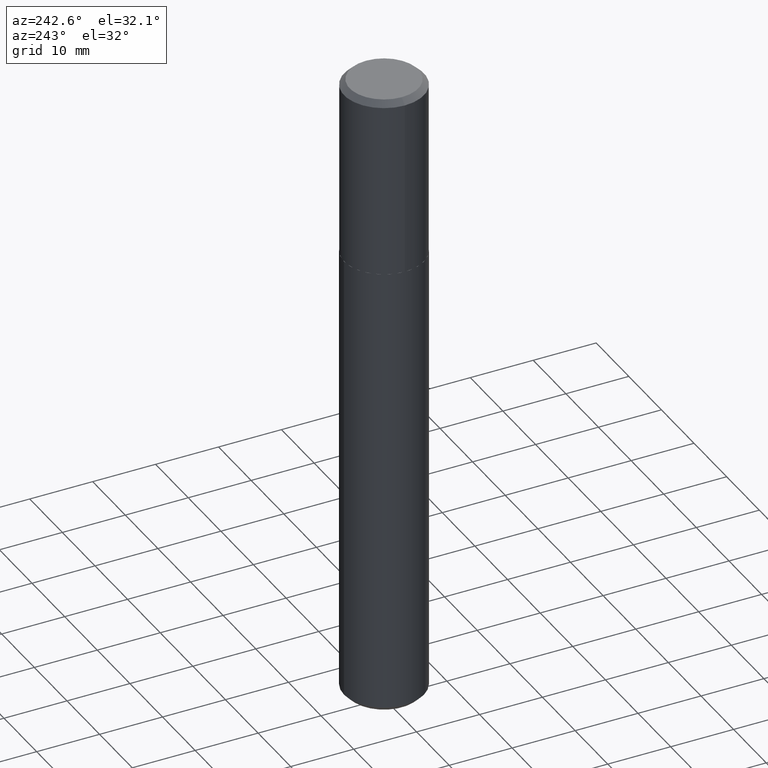
[diagram: clean part render]
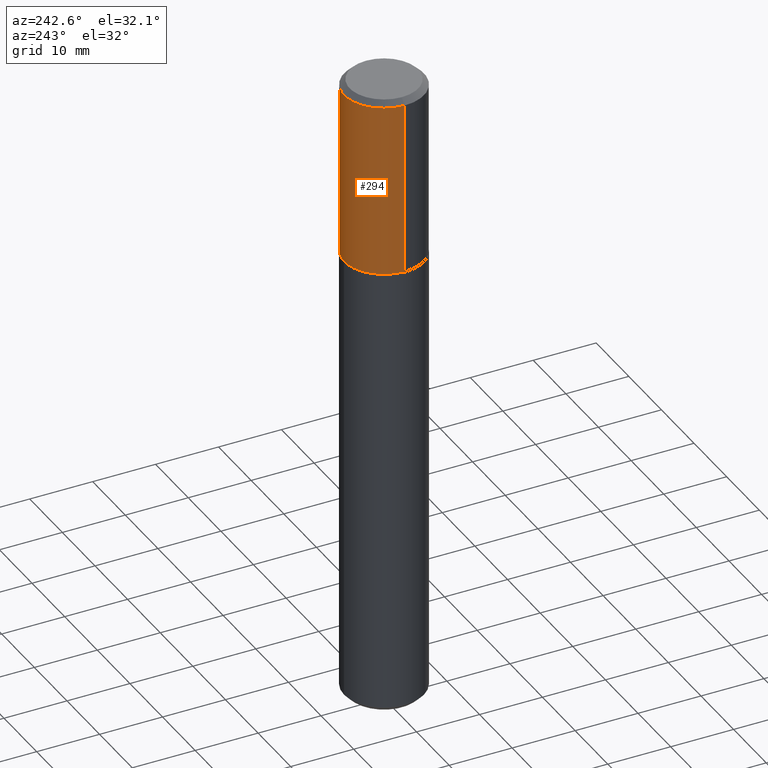
[diagram: same view with one face highlighted and labeled with its STEP entity id]
A machine part, auxiliary view. The second image highlights one B-rep face of the part: STEP entity #294.
In plain terms, the highlighted cylindrical surface (partial cylindrical patch) has radius 6.35 mm, axis along (-0, 0, 1).
Its self-contained STEP definition (entity closure, byte-faithful):
#1 = CARTESIAN_POINT ( 'NONE',  ( -0.2500000000000001110, -2.149813926128866467E-15, -1.124500000000000055 ) ) ;
#27 = ORIENTED_EDGE ( 'NONE', *, *, #96, .T. ) ;
#32 = CIRCLE ( 'NONE', #102, 0.2500000000000000000 ) ;
#34 = EDGE_CURVE ( 'NONE', #311, #95, #108, .T. ) ;
#42 = VECTOR ( 'NONE', #269, 39.37007874015748143 ) ;
#44 = CARTESIAN_POINT ( 'NONE',  ( -0.2500000000000000555, 1.776356839400250859E-15, -1.229733772563726866E-29 ) ) ;
#46 = DIRECTION ( 'NONE',  ( -2.445468806185136597E-29, 3.491481338843145583E-15, 1.000000000000000000 ) ) ;
#56 = FACE_OUTER_BOUND ( 'NONE', #62, .T. ) ;
#58 = CARTESIAN_POINT ( 'NONE',  ( 0.2500000000000000555, -1.745740669421567269E-15, 1.219044193948984228E-29 ) ) ;
#62 = EDGE_LOOP ( 'NONE', ( #27, #218, #414, #249 ) ) ;
#64 = AXIS2_PLACEMENT_3D ( 'NONE', #198, #324, #296 ) ;
#82 = VERTEX_POINT ( 'NONE', #244 ) ;
#84 = VECTOR ( 'NONE', #92, 39.37007874015748143 ) ;
#86 = VERTEX_POINT ( 'NONE', #116 ) ;
#92 = DIRECTION ( 'NONE',  ( -2.445468806185136877E-29, 3.491481338843145188E-15, 1.000000000000000000 ) ) ;
#95 = VERTEX_POINT ( 'NONE', #365 ) ;
#96 = EDGE_CURVE ( 'NONE', #82, #311, #179, .T. ) ;
#102 = AXIS2_PLACEMENT_3D ( 'NONE', #171, #214, #106 ) ;
#106 = DIRECTION ( 'NONE',  ( 1.000000000000000000, -6.982962677686266711E-15, 0.000000000000000000 ) ) ;
#108 = LINE ( 'NONE', #44, #42 ) ;
#116 = CARTESIAN_POINT ( 'NONE',  ( 0.2500000000000000000, -1.867942516281077449E-15, -0.03500000000000021844 ) ) ;
#125 = LINE ( 'NONE', #58, #84 ) ;
#171 = CARTESIAN_POINT ( 'NONE',  ( 8.559140821648030357E-31, -1.222018468595108458E-16, -0.03500000000000021844 ) ) ;
#173 = DIRECTION ( 'NONE',  ( 1.000000000000000000, -6.982962677686265922E-15, 0.000000000000000000 ) ) ;
#179 = CIRCLE ( 'NONE', #326, 0.2500000000000001110 ) ;
#187 = EDGE_CURVE ( 'NONE', #86, #95, #32, .T. ) ;
#198 = CARTESIAN_POINT ( 'NONE',  ( 0.000000000000000000, 0.000000000000000000, 0.000000000000000000 ) ) ;
#214 = DIRECTION ( 'NONE',  ( -2.445468806185136597E-29, 3.491481338843145583E-15, 1.000000000000000000 ) ) ;
#218 = ORIENTED_EDGE ( 'NONE', *, *, #34, .T. ) ;
#244 = CARTESIAN_POINT ( 'NONE',  ( 0.2500000000000001110, -5.671911434950684398E-15, -1.124500000000000055 ) ) ;
#249 = ORIENTED_EDGE ( 'NONE', *, *, #320, .F. ) ;
#269 = DIRECTION ( 'NONE',  ( -2.445468806185136877E-29, 3.491481338843145188E-15, 1.000000000000000000 ) ) ;
#290 = CYLINDRICAL_SURFACE ( 'NONE', #64, 0.2500000000000000555 ) ;
#294 = ADVANCED_FACE ( 'NONE', ( #56 ), #290, .T. ) ;
#296 = DIRECTION ( 'NONE',  ( 1.000000000000000000, -6.982962677686267499E-15, 4.876176775795935793E-29 ) ) ;
#311 = VERTEX_POINT ( 'NONE', #1 ) ;
#320 = EDGE_CURVE ( 'NONE', #82, #86, #125, .T. ) ;
#324 = DIRECTION ( 'NONE',  ( -2.445468806185136597E-29, 3.491481338843145583E-15, 1.000000000000000000 ) ) ;
#326 = AXIS2_PLACEMENT_3D ( 'NONE', #334, #46, #173 ) ;
#334 = CARTESIAN_POINT ( 'NONE',  ( 2.749929672555186430E-29, -3.926170765529117721E-15, -1.124500000000000055 ) ) ;
#365 = CARTESIAN_POINT ( 'NONE',  ( -0.2500000000000000000, -2.478294667940632885E-16, -0.03500000000000021844 ) ) ;
#414 = ORIENTED_EDGE ( 'NONE', *, *, #187, .F. ) ;